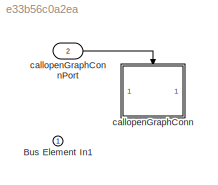
MODEL slx_e33b56c0a2ea
KIND model
CONFIG AbsTol = auto
CONFIG EnableMultiTasking = off
CONFIG FixedStep = auto
CONFIG MaxStep = auto
CONFIG MinStep = auto
CONFIG RelTol = 1e-3
CONFIG SampleTimeConstraint = Unconstrained
CONFIG SolverName = FixedStepAuto
CONFIG StartTime = 0.0
CONFIG StopTime = 10.0
BLOCK [Inport] Bus Element In1
  AllowServiceAccess = on
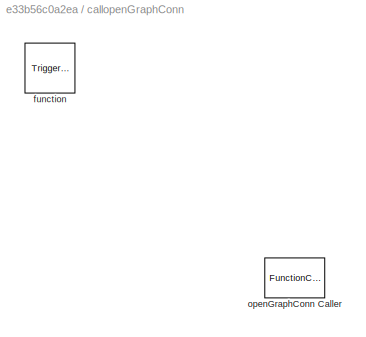
BLOCK [SubSystem] callopenGraphConn
BLOCK [TriggerPort] callopenGraphConn/function
  StatesWhenEnabling = held
  TriggerType = function-call
  VariantControl = (inherit)
BLOCK [FunctionCaller] callopenGraphConn/openGraphConn Caller
  FunctionPrototype = Client.openGraphConn()
  InputArgumentSpecifications = <Enter example>
  OutputArgumentSpecifications = <Enter example>
BLOCK [Inport] callopenGraphConnPort
  OutputFunctionCall = on
  Port = 2
LINE callopenGraphConnPort:1 -> callopenGraphConn:trigger
